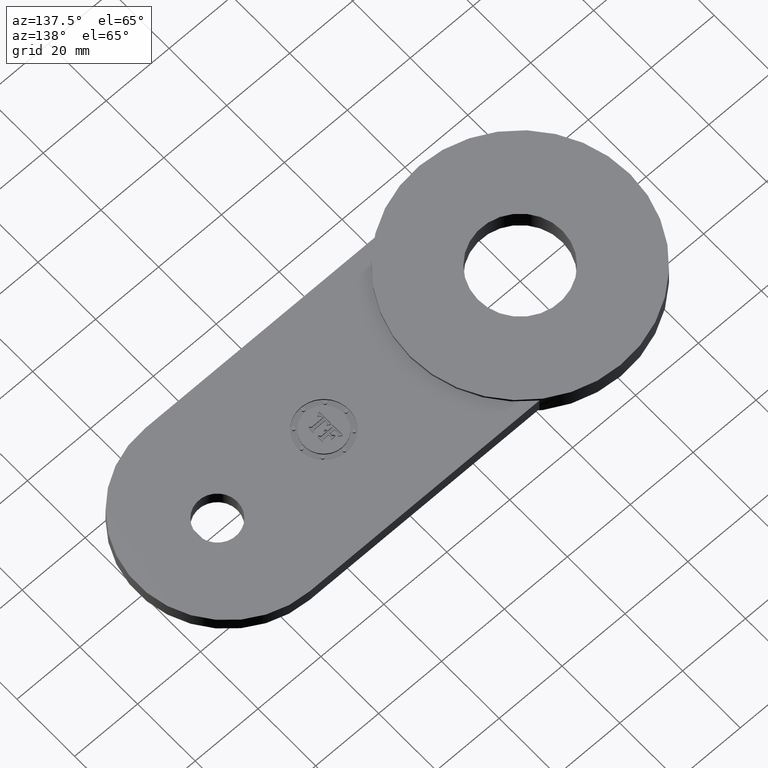
[diagram: clean part render]
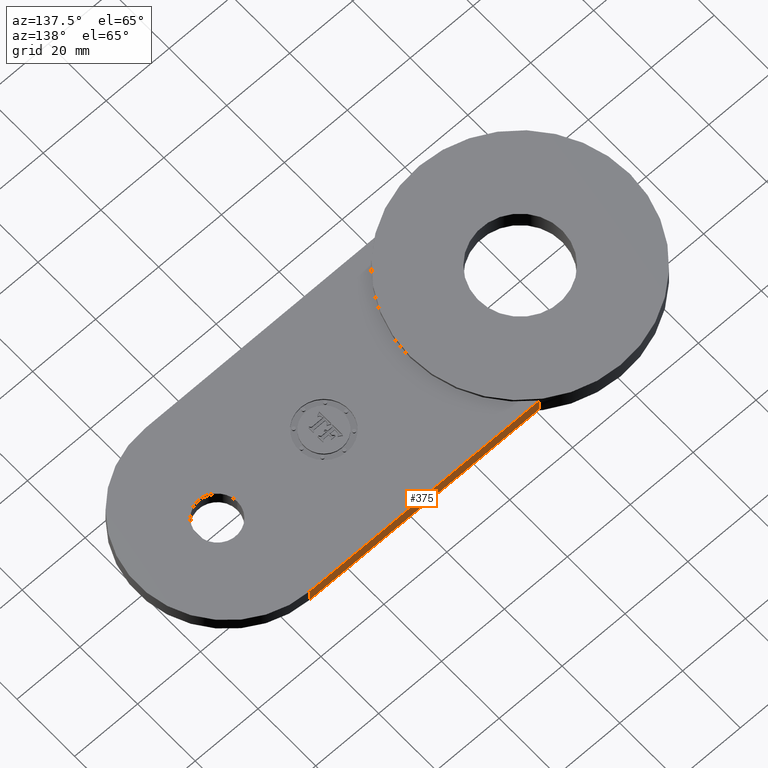
[diagram: same view with one face highlighted and labeled with its STEP entity id]
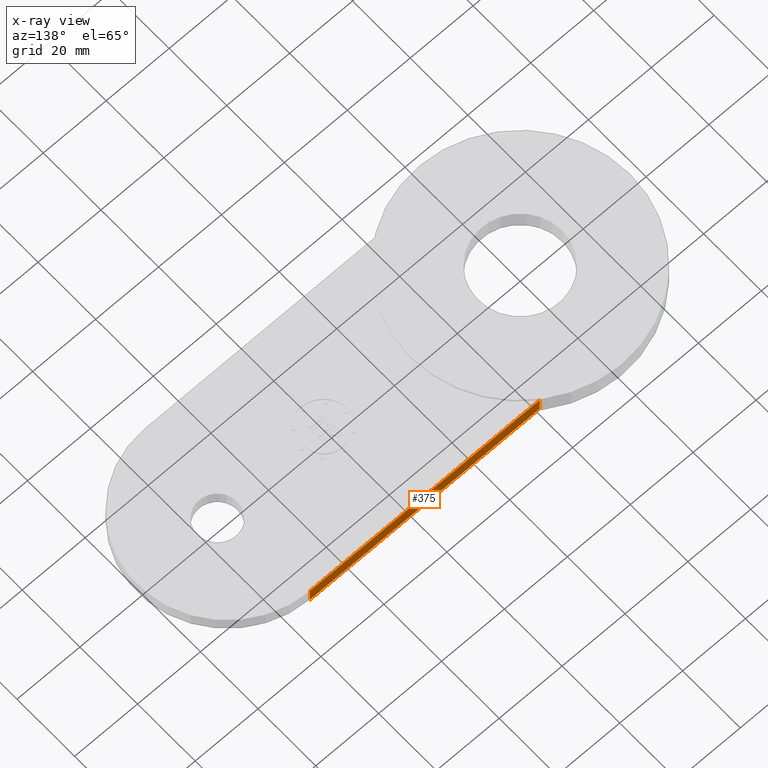
[diagram: x-ray of the same camera — body ghosted, the highlighted face saturated]
A machine part, auxiliary view. The second image highlights one B-rep face of the part: STEP entity #375.
The next image is the same camera in x-ray: the body ghosted, the highlighted face saturated — about 0% of this face is hidden behind the body in this view.
In plain terms, the highlighted planar face has unit normal (0, 1, -0).
Its self-contained STEP definition (entity closure, byte-faithful):
#362=AXIS2_PLACEMENT_3D('Plane Axis2P3D',#359,#360,#361) ;
#157=CARTESIAN_POINT('Vertex',(0.790569415045,1.125,0.0937500000004)) ;
#160=CARTESIAN_POINT('Line Origine',(0.790569415045,1.125,0.)) ;
#164=CARTESIAN_POINT('Vertex',(0.790569415045,1.125,-0.0937500000004)) ;
#258=CARTESIAN_POINT('Vertex',(3.66556941506,1.125,-0.0937500000004)) ;
#261=CARTESIAN_POINT('Line Origine',(3.66556941506,1.125,0.)) ;
#265=CARTESIAN_POINT('Vertex',(3.66556941506,1.125,0.0937500000004)) ;
#342=CARTESIAN_POINT('Line Origine',(2.22806941505,1.125,-0.0937500000004)) ;
#359=CARTESIAN_POINT('Axis2P3D Location',(3.66556941506,1.125,0.)) ;
#364=CARTESIAN_POINT('Line Origine',(2.22806941505,1.125,0.0937500000004)) ;
#161=DIRECTION('Vector Direction',(0.,0.,0.0393700787402)) ;
#262=DIRECTION('Vector Direction',(0.,0.,0.0393700787402)) ;
#343=DIRECTION('Vector Direction',(-0.0393700787402,0.,0.)) ;
#360=DIRECTION('Axis2P3D Direction',(0.,0.0393700787402,-0.)) ;
#361=DIRECTION('Axis2P3D XDirection',(-0.0393700787402,0.,0.)) ;
#365=DIRECTION('Vector Direction',(-0.0393700787402,0.,0.)) ;
#162=VECTOR('Line Direction',#161,0.0393700787402) ;
#263=VECTOR('Line Direction',#262,0.0393700787402) ;
#344=VECTOR('Line Direction',#343,0.0393700787402) ;
#366=VECTOR('Line Direction',#365,0.0393700787402) ;
#370=ORIENTED_EDGE('',*,*,#267,.F.) ;
#371=ORIENTED_EDGE('',*,*,#346,.T.) ;
#372=ORIENTED_EDGE('',*,*,#166,.T.) ;
#373=ORIENTED_EDGE('',*,*,#368,.F.) ;
#375=ADVANCED_FACE('PartBody',(#374),#363,.T.) ;
#166=EDGE_CURVE('',#165,#158,#163,.T.) ;
#267=EDGE_CURVE('',#259,#266,#264,.T.) ;
#346=EDGE_CURVE('',#259,#165,#345,.T.) ;
#368=EDGE_CURVE('',#266,#158,#367,.T.) ;
#369=EDGE_LOOP('',(#370,#371,#372,#373)) ;
#374=FACE_OUTER_BOUND('',#369,.T.) ;
#163=LINE('Line',#160,#162) ;
#264=LINE('Line',#261,#263) ;
#345=LINE('Line',#342,#344) ;
#367=LINE('Line',#364,#366) ;
#363=PLANE('',#362) ;
#158=VERTEX_POINT('',#157) ;
#165=VERTEX_POINT('',#164) ;
#259=VERTEX_POINT('',#258) ;
#266=VERTEX_POINT('',#265) ;